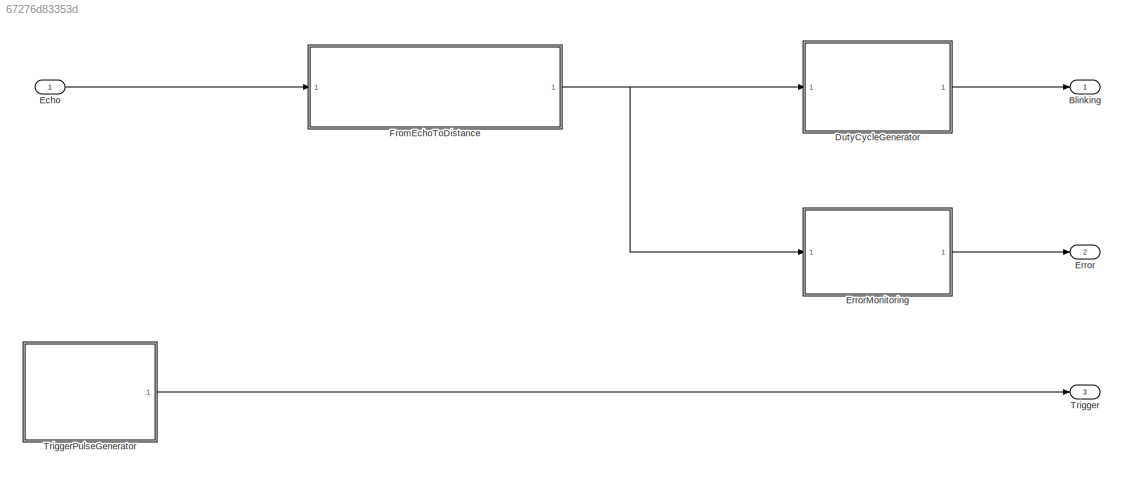
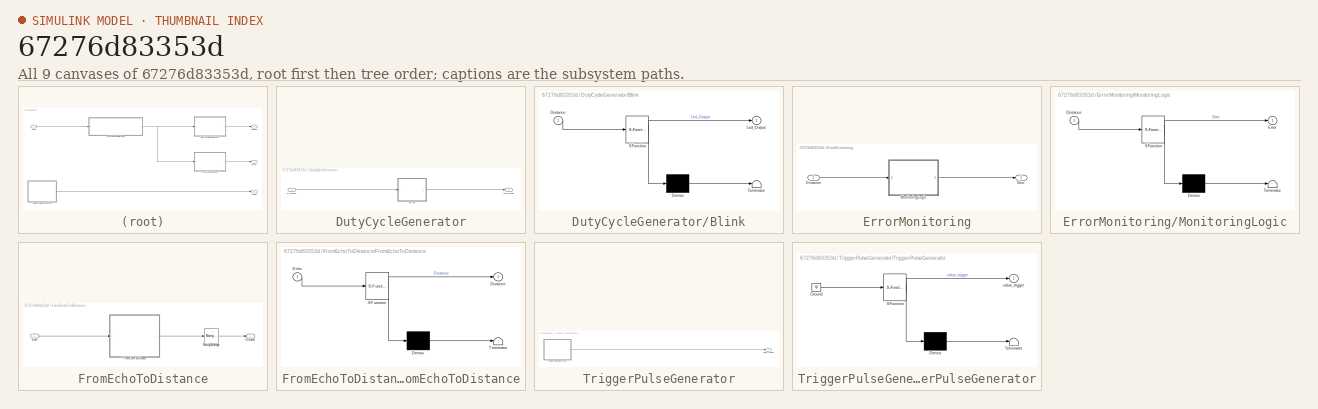
[diagram: thumbnail index - all 9 canvases of the model, root first then tree order]
MODEL slx_67276d83353d
KIND model
CONFIG AbsTol = auto
CONFIG EnableMultiTasking = on
CONFIG FixedStep = T_sample_control
CONFIG MaxStep = auto
CONFIG MinStep = auto
CONFIG RelTol = 1e-3
CONFIG SampleTimeConstraint = Unconstrained
CONFIG SolverName = FixedStepDiscrete
CONFIG StartTime = 0.0
CONFIG StopTime = inf
BLOCK [Outport] Blinking
  OutDataTypeStr = boolean
  PortDimensions = 1
  SampleTime = T_sample_control
  SignalType = real
  VarSizeSig = No
BLOCK [SubSystem] DutyCycleGenerator
  Ports = [1, 1]
  RequestExecContextInheritance = off
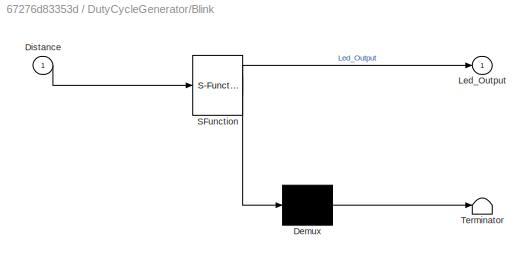
BLOCK [SubSystem] DutyCycleGenerator/Blink
  ErrorFcn = Stateflow.Translate.translate
  PermitHierarchicalResolution = ExplicitOnly
  Ports = [1, 1]
  RequestExecContextInheritance = off
  SFBlockType = Chart
  TreatAsAtomicUnit = on
BLOCK [Demux] DutyCycleGenerator/Blink/ Demux 
  Outputs = 1
  Ports = [1, 1]
BLOCK [S-Function] DutyCycleGenerator/Blink/ SFunction 
  EnableBusSupport = on
  FunctionName = sf_sfun
  PortCounts = [1 2]
  Ports = [1, 2]
  SFcnIsStateOwnerBlock = off
  SFunctionDeploymentMode = off
  Tag = Stateflow S-Function 2
BLOCK [Terminator] DutyCycleGenerator/Blink/ Terminator 
BLOCK [Inport] DutyCycleGenerator/Blink/Distance
BLOCK [Outport] DutyCycleGenerator/Blink/Led_Output
BLOCK [Inport] DutyCycleGenerator/Distance
  OutDataTypeStr = double
BLOCK [Outport] DutyCycleGenerator/Led_Output
  OutDataTypeStr = boolean
BLOCK [Inport] Echo
  PortDimensions = 1
  SampleTime = T_sample_control
  SignalType = real
BLOCK [Outport] Error
  OutDataTypeStr = boolean
  Port = 2
BLOCK [SubSystem] ErrorMonitoring
  Ports = [1, 1]
  RequestExecContextInheritance = off
BLOCK [Inport] ErrorMonitoring/Distance
  OutDataTypeStr = double
BLOCK [Outport] ErrorMonitoring/Error
  OutDataTypeStr = boolean
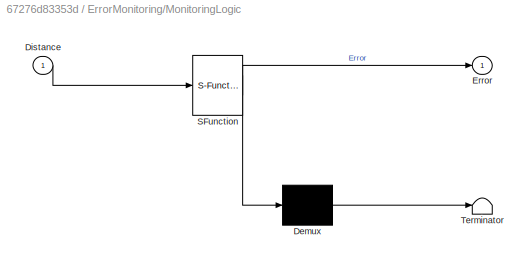
BLOCK [SubSystem] ErrorMonitoring/MonitoringLogic
  ErrorFcn = Stateflow.Translate.translate
  PermitHierarchicalResolution = ExplicitOnly
  Ports = [1, 1]
  RequestExecContextInheritance = off
  SFBlockType = Chart
  TreatAsAtomicUnit = on
BLOCK [Demux] ErrorMonitoring/MonitoringLogic/ Demux 
  Outputs = 1
  Ports = [1, 1]
BLOCK [S-Function] ErrorMonitoring/MonitoringLogic/ SFunction 
  EnableBusSupport = on
  FunctionName = sf_sfun
  PortCounts = [1 2]
  Ports = [1, 2]
  SFcnIsStateOwnerBlock = off
  SFunctionDeploymentMode = off
  Tag = Stateflow S-Function 3
BLOCK [Terminator] ErrorMonitoring/MonitoringLogic/ Terminator 
BLOCK [Inport] ErrorMonitoring/MonitoringLogic/Distance
BLOCK [Outport] ErrorMonitoring/MonitoringLogic/Error
BLOCK [SubSystem] FromEchoToDistance
  Ports = [1, 1]
  RequestExecContextInheritance = off
BLOCK [Outport] FromEchoToDistance/Distance
BLOCK [Inport] FromEchoToDistance/Echo
BLOCK [SubSystem] FromEchoToDistance/FromEchoToDistance
  ErrorFcn = Stateflow.Translate.translate
  PermitHierarchicalResolution = ExplicitOnly
  Ports = [1, 1]
  RequestExecContextInheritance = off
  SFBlockType = Chart
  TreatAsAtomicUnit = on
BLOCK [Demux] FromEchoToDistance/FromEchoToDistance/ Demux 
  Outputs = 1
  Ports = [1, 1]
BLOCK [S-Function] FromEchoToDistance/FromEchoToDistance/ SFunction 
  EnableBusSupport = on
  FunctionName = sf_sfun
  PortCounts = [1 2]
  Ports = [1, 2]
  SFcnIsStateOwnerBlock = off
  SFunctionDeploymentMode = off
  Tag = Stateflow S-Function 1
BLOCK [Terminator] FromEchoToDistance/FromEchoToDistance/ Terminator 
BLOCK [Outport] FromEchoToDistance/FromEchoToDistance/Distance
BLOCK [Inport] FromEchoToDistance/FromEchoToDistance/Echo
BLOCK [Reference] FromEchoToDistance/Moving Average  REF=dspstat3/Moving
Average
  Ports = [1, 1]
  SourceBlock = dspstat3/Moving\nAverage
  SourceProductBaseCode = DS
  SourceType = dsp.simulink.MovingAverage
BLOCK [Outport] Trigger
  OutDataTypeStr = boolean
  Port = 3
BLOCK [SubSystem] TriggerPulseGenerator
  Ports = [0, 1]
  RequestExecContextInheritance = off
BLOCK [SubSystem] TriggerPulseGenerator/TriggerPulseGenerator
  ErrorFcn = Stateflow.Translate.translate
  PermitHierarchicalResolution = ExplicitOnly
  Ports = [0, 1]
  RequestExecContextInheritance = off
  SFBlockType = Chart
  TreatAsAtomicUnit = on
BLOCK [Demux] TriggerPulseGenerator/TriggerPulseGenerator/ Demux 
  Outputs = 1
  Ports = [1, 1]
BLOCK [Ground] TriggerPulseGenerator/TriggerPulseGenerator/ Ground 
BLOCK [S-Function] TriggerPulseGenerator/TriggerPulseGenerator/ SFunction 
  EnableBusSupport = on
  FunctionName = sf_sfun
  PortCounts = [1 2]
  Ports = [1, 2]
  SFcnIsStateOwnerBlock = off
  SFunctionDeploymentMode = off
  Tag = Stateflow S-Function 5
BLOCK [Terminator] TriggerPulseGenerator/TriggerPulseGenerator/ Terminator 
BLOCK [Outport] TriggerPulseGenerator/TriggerPulseGenerator/value_trigger
BLOCK [Outport] TriggerPulseGenerator/value_trigger
LINE DutyCycleGenerator/Blink:1 -> DutyCycleGenerator/Led_Output:1
LINE DutyCycleGenerator/Distance:1 -> DutyCycleGenerator/Blink:1
LINE DutyCycleGenerator:1 -> Blinking:1
LINE Echo:1 -> FromEchoToDistance:1
LINE ErrorMonitoring/Distance:1 -> ErrorMonitoring/MonitoringLogic:1
LINE ErrorMonitoring/MonitoringLogic:1 -> ErrorMonitoring/Error:1
LINE ErrorMonitoring:1 -> Error:1
LINE FromEchoToDistance/Echo:1 -> FromEchoToDistance/FromEchoToDistance:1
LINE FromEchoToDistance/FromEchoToDistance:1 -> FromEchoToDistance/Moving Average:1
LINE FromEchoToDistance/Moving Average:1 -> FromEchoToDistance/Distance:1
NET FromEchoToDistance:1 -> DutyCycleGenerator:1, ErrorMonitoring:1
LINE TriggerPulseGenerator/TriggerPulseGenerator:1 -> TriggerPulseGenerator/value_trigger:1
LINE TriggerPulseGenerator:1 -> Trigger:1
note: NET lines group one-source signal fan-out (src -> all destinations, sorted); 1:1 wires keep LINE
CHART switchCase states=3 transitions=3
  STATE_LABEL 'CASE1\nen: flag=1;'
  STATE_LABEL 'CASE2\nen: flag=2;'
  STATE_LABEL 'END\n'
CHART testVector states=10 transitions=10
  STATE_LABEL 'CASE1\nen: flag=1;\n distance=50;'
  STATE_LABEL 'CASE2\nen: flag=2;\n distance=5;'
  STATE_LABEL 'CASE3\nen: flag=3;\n distance=10;'
  STATE_LABEL 'CASE4\nen: flag=4;\n distance=0;'
  STATE_LABEL 'CASE5\nen: flag=2;\n distance=200;'
  STATE_LABEL 'CASE6\nen: flag=5;\n distance=100;'
  STATE_LABEL 'CASE7\nen: flag=2;\n distance=5;'
  STATE_LABEL 'CASE8\nen: flag=4;\n distance=0;'
  STATE_LABEL 'CASE9\nen: flag=3\n distance=10;\n'
  STATE_LABEL 'END\n'
CHART testVector states=10 transitions=10
  STATE_LABEL 'CASE1\nDistance=0;\nexpected_error=0;'
  STATE_LABEL 'CASE2\nDistance=2;\nexpected_error=0;'
  STATE_LABEL 'CASE3\nDistance=400;\nexpected_error=0;'
  STATE_LABEL 'CASE4\nDistance=1;\nexpected_error=0;'
  STATE_LABEL 'CASE5\nexpected_error=1;'
  STATE_LABEL 'CASE6\nDistance=450;\nexpected_error=1;'
  STATE_LABEL 'CASE7\nDistance=10;\nexpected_error=0;'
  STATE_LABEL 'CASE8\nDistance=1;\nexpected_error=0;'
  STATE_LABEL 'CASE9\nDistance=10;\nexpected_error=0;'
  STATE_LABEL 'END\n'
CHART ErrorMonitoring/MonitoringLogic states=4 transitions=8
  STATE_LABEL 'RESET\nen: Error=false;'
  STATE_LABEL 'stato iniziale assumiamo nessun errore'
  STATE_LABEL 'CHECK_FOR_ERROR\nen: Error=false;\n'
  STATE_LABEL 'ERROR_STATE\nen: Error=true;\n'
CHART TriggerPulseGenerator/TriggerPulseGenerator states=3 transitions=3
  STATE_LABEL 'HIGH\nen: value_trigger =true;'
  STATE_LABEL 'Trigger pulse every 100ms'
  STATE_LABEL 'LOW\nen: value_trigger =false;'
CHART FromEchoToDistance/FromEchoToDistance states=3 transitions=5
  STATE_LABEL 'COMPUTE_ECHO_DURATION'
  STATE_LABEL 'INIT\nen: Counter=0;'
  STATE_LABEL 'WAIT_TO_FALL\nen: Counter = Counter + 1;\n'
  STATE_LABEL 'after(100,msec)[Echo==0]{Distance=0;}'
  STATE_LABEL '{Distance=Counter/58;}'
  STATE_LABEL '[Echo==1]'
  STATE_LABEL '[Echo==1]'
  STATE_LABEL 'INIT\nen: Counter=0;'
  STATE_LABEL 'WAIT_TO_FALL\nen: Counter = Counter + 1;\n'
CHART DutyCycleGenerator/Blink states=10 transitions=21
  STATE_LABEL 'NO_BLINK\n'
  STATE_LABEL 'Blinker2'
  STATE_LABEL 'LED_ON\nen: Led_Output=true;'
  STATE_LABEL 'LED_OFF\nen: Led_Output=false;'
  STATE_LABEL 'after(250,msec)'
  STATE_LABEL 'after(250,msec)'
  STATE_LABEL 'LED_ON\nen: Led_Output=true;'
  STATE_LABEL 'LED_OFF\nen: Led_Output=false;'
  STATE_LABEL 'blinker3'
  STATE_LABEL 'LED_ON\nen: Led_Output=true;'
  STATE_LABEL 'LED_OFF\nen: Led_Output=false;'
  STATE_LABEL 'after(500,msec)'
  STATE_LABEL 'after(500,msec)'
  STATE_LABEL 'LED_ON\nen: Led_Output=true;'
  STATE_LABEL 'LED_OFF\nen: Led_Output=false;'
  STATE_LABEL 'Blinker1'
  STATE_LABEL 'LED_ON\nen: Led_Output=true;'
  STATE_LABEL 'LED_OFF\nen: Led_Output=false;'
  STATE_LABEL '[Distance==100]'
  STATE_LABEL 'after(0.1-Distance/1000, sec)'
  STATE_LABEL 'after(Distance/1000, sec)'
  STATE_LABEL 'LED_ON\nen: Led_Output=true;'
  STATE_LABEL 'LED_OFF\nen: Led_Output=false;'
CHART  states=0 transitions=0
CHART  states=0 transitions=0
CHART  states=0 transitions=0
CHART  states=0 transitions=0
